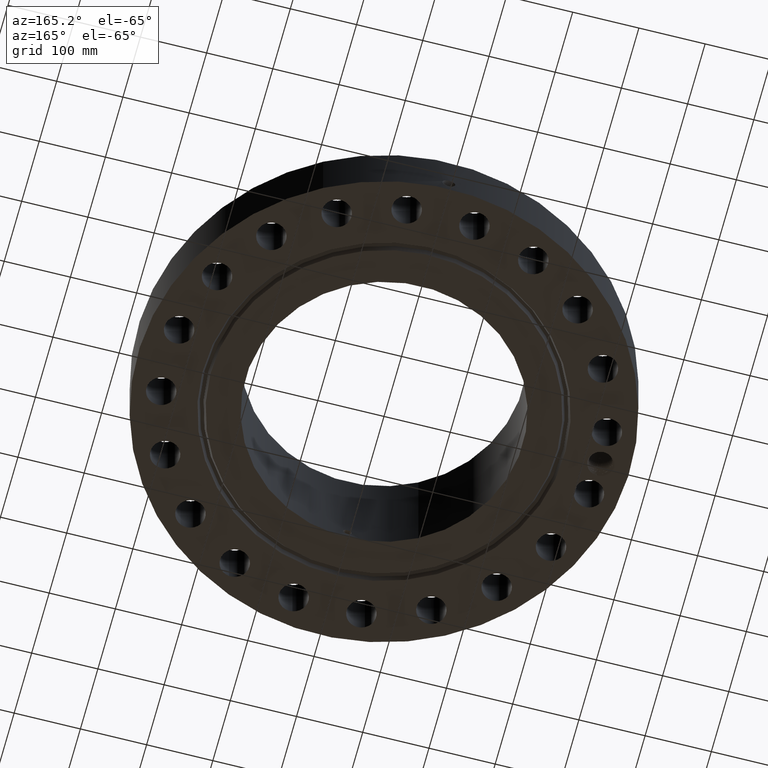
[diagram: clean part render]
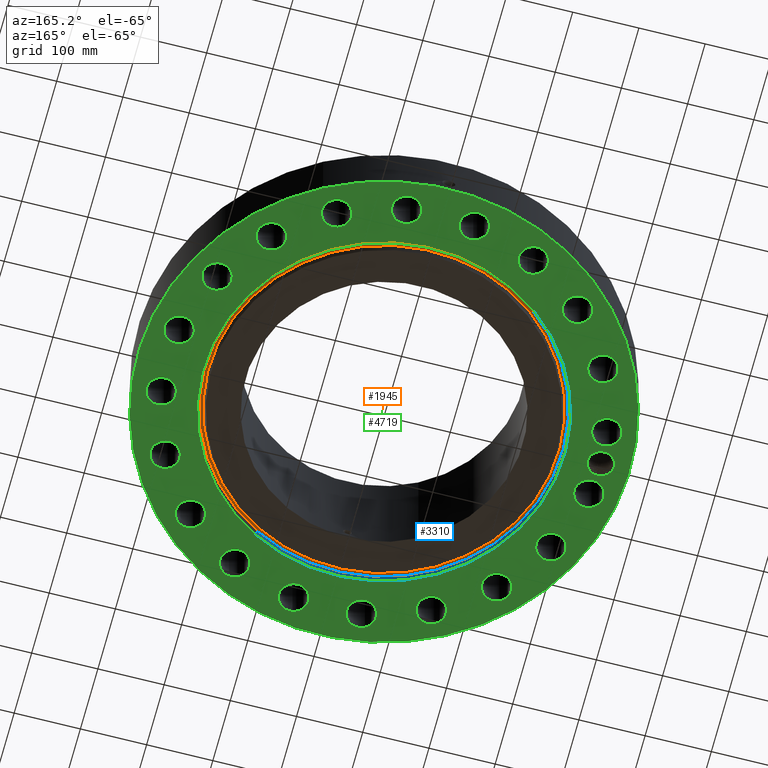
[diagram: same view with three faces highlighted in distinct colors, each labeled with its STEP entity id]
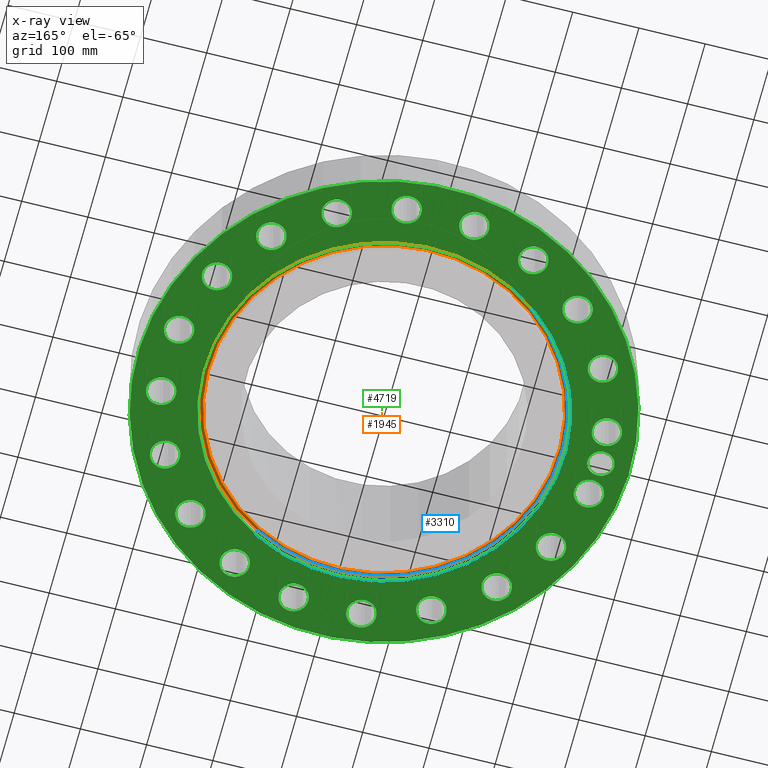
[diagram: x-ray of the same camera — body ghosted, the three highlighted faces saturated]
A machine part, auxiliary view with three faces highlighted in distinct colors.
The next image is the same camera in x-ray (body ghosted, the three faces saturated) — at least one of them is partly hidden behind the body in this view.
Their STEP definitions:

[orange] entity #1945 — the highlighted planar face has unit normal (0, 0, 1).
#1423=AXIS2_PLACEMENT_3D('Circle Axis2P3D',#1421,#1422,$) ;
#1449=AXIS2_PLACEMENT_3D('Circle Axis2P3D',#1447,#1448,$) ;
#1921=AXIS2_PLACEMENT_3D('Plane Axis2P3D',#1918,#1919,#1920) ;
#1925=AXIS2_PLACEMENT_3D('Circle Axis2P3D',#1923,#1924,$) ;
#1934=AXIS2_PLACEMENT_3D('Circle Axis2P3D',#1932,#1933,$) ;
#1421=CARTESIAN_POINT('Axis2P3D Location',(0.,0.,0.312000000001)) ;
#1425=CARTESIAN_POINT('Vertex',(4.99455588084,-9.14247321528,0.312000000001)) ;
#1427=CARTESIAN_POINT('Vertex',(-4.99455588084,9.14247321528,0.312000000001)) ;
#1447=CARTESIAN_POINT('Axis2P3D Location',(0.,0.,0.312000000001)) ;
#1918=CARTESIAN_POINT('Axis2P3D Location',(0.,10.4177927095,0.312000000001)) ;
#1923=CARTESIAN_POINT('Axis2P3D Location',(0.,0.,0.312000000001)) ;
#1927=CARTESIAN_POINT('Vertex',(-5.07338042989,9.2867605845,0.312000000001)) ;
#1929=CARTESIAN_POINT('Vertex',(5.07338042989,-9.2867605845,0.312000000001)) ;
#1932=CARTESIAN_POINT('Axis2P3D Location',(0.,0.,0.312000000001)) ;
#1422=DIRECTION('Axis2P3D Direction',(0.,0.,0.0393700787402)) ;
#1448=DIRECTION('Axis2P3D Direction',(0.,0.,0.0393700787402)) ;
#1919=DIRECTION('Axis2P3D Direction',(0.,0.,0.0393700787402)) ;
#1920=DIRECTION('Axis2P3D XDirection',(0.0393700787402,0.,0.)) ;
#1924=DIRECTION('Axis2P3D Direction',(0.,0.,0.0393700787402)) ;
#1933=DIRECTION('Axis2P3D Direction',(0.,0.,0.0393700787402)) ;
#1938=ORIENTED_EDGE('',*,*,#1931,.F.) ;
#1939=ORIENTED_EDGE('',*,*,#1936,.F.) ;
#1942=ORIENTED_EDGE('',*,*,#1429,.T.) ;
#1943=ORIENTED_EDGE('',*,*,#1451,.T.) ;
#1944=FACE_BOUND('',#1941,.T.) ;
#1945=ADVANCED_FACE('PartBody',(#1940,#1944),#1922,.F.) ;
#1424=CIRCLE('generated circle',#1423,10.4177927095) ;
#1450=CIRCLE('generated circle',#1449,10.4177927095) ;
#1926=CIRCLE('generated circle',#1925,10.5822072905) ;
#1935=CIRCLE('generated circle',#1934,10.5822072905) ;
#1429=EDGE_CURVE('',#1426,#1428,#1424,.T.) ;
#1451=EDGE_CURVE('',#1428,#1426,#1450,.T.) ;
#1931=EDGE_CURVE('',#1928,#1930,#1926,.T.) ;
#1936=EDGE_CURVE('',#1930,#1928,#1935,.T.) ;
#1937=EDGE_LOOP('',(#1938,#1939)) ;
#1941=EDGE_LOOP('',(#1942,#1943)) ;
#1940=FACE_OUTER_BOUND('',#1937,.T.) ;
#1922=PLANE('',#1921) ;
#1426=VERTEX_POINT('',#1425) ;
#1428=VERTEX_POINT('',#1427) ;
#1928=VERTEX_POINT('',#1927) ;
#1930=VERTEX_POINT('',#1929) ;

[blue] entity #3310 — the highlighted conical surface has half-angle 23 deg.
#2635=AXIS2_PLACEMENT_3D('Circle Axis2P3D',#2633,#2634,$) ;
#3271=AXIS2_PLACEMENT_3D('Cone Axis2P3D',#3268,#3269,#3270) ;
#3301=AXIS2_PLACEMENT_3D('Circle Axis2P3D',#3299,#3300,$) ;
#2611=CARTESIAN_POINT('Vertex',(5.08661983595,-9.31099515472,0.293721933856)) ;
#2613=CARTESIAN_POINT('Vertex',(-5.08661983595,9.31099515472,0.293721933856)) ;
#2633=CARTESIAN_POINT('Axis2P3D Location',(0.,0.,0.293721933856)) ;
#3268=CARTESIAN_POINT('Axis2P3D Location',(0.,0.,0.293721933856)) ;
#3277=CARTESIAN_POINT('Vertex',(-5.14639344417,9.42041001065,0.)) ;
#3279=CARTESIAN_POINT('Vertex',(5.14639344417,-9.42041001065,-1.60851209867E-015)) ;
#3282=CARTESIAN_POINT('Line Origine',(5.11650664006,-9.36570258269,0.146860966928)) ;
#3287=CARTESIAN_POINT('Line Origine',(-5.11650664006,9.36570258269,0.146860966928)) ;
#3299=CARTESIAN_POINT('Axis2P3D Location',(0.,0.,0.)) ;
#2634=DIRECTION('Axis2P3D Direction',(0.,0.,0.0393700787402)) ;
#3269=DIRECTION('Axis2P3D Direction',(-0.,-0.,-0.0393700787402)) ;
#3270=DIRECTION('Axis2P3D XDirection',(0.0188750212049,-0.0345504945626,0.)) ;
#3283=DIRECTION('Vector Direction',(0.00737505833565,-0.0134999537303,-0.0362403485611)) ;
#3288=DIRECTION('Vector Direction',(-0.00737505833565,0.0134999537303,-0.0362403485611)) ;
#3300=DIRECTION('Axis2P3D Direction',(0.,0.,-0.0393700787402)) ;
#3284=VECTOR('Line Direction',#3283,0.0393700787402) ;
#3289=VECTOR('Line Direction',#3288,0.0393700787402) ;
#3305=ORIENTED_EDGE('',*,*,#3303,.T.) ;
#3306=ORIENTED_EDGE('',*,*,#3291,.T.) ;
#3307=ORIENTED_EDGE('',*,*,#2637,.T.) ;
#3308=ORIENTED_EDGE('',*,*,#3286,.F.) ;
#3310=ADVANCED_FACE('PartBody',(#3309),#3272,.F.) ;
#2636=CIRCLE('generated circle',#2635,10.6098224362) ;
#3302=CIRCLE('generated circle',#3301,10.7345) ;
#3272=CONICAL_SURFACE('Cone',#3271,10.6098224362,0.401425727959) ;
#2637=EDGE_CURVE('',#2614,#2612,#2636,.T.) ;
#3286=EDGE_CURVE('',#3280,#2612,#3285,.F.) ;
#3291=EDGE_CURVE('',#3278,#2614,#3290,.F.) ;
#3303=EDGE_CURVE('',#3280,#3278,#3302,.T.) ;
#3304=EDGE_LOOP('',(#3305,#3306,#3307,#3308)) ;
#3309=FACE_OUTER_BOUND('',#3304,.T.) ;
#3285=LINE('Line',#3282,#3284) ;
#3290=LINE('Line',#3287,#3289) ;
#2612=VERTEX_POINT('',#2611) ;
#2614=VERTEX_POINT('',#2613) ;
#3278=VERTEX_POINT('',#3277) ;
#3280=VERTEX_POINT('',#3279) ;

[green] entity #4719 — the highlighted planar face has unit normal (0, 0, -1).
#598=AXIS2_PLACEMENT_3D('Plane Axis2P3D',#595,#596,#597) ;
#3275=AXIS2_PLACEMENT_3D('Circle Axis2P3D',#3273,#3274,$) ;
#3301=AXIS2_PLACEMENT_3D('Circle Axis2P3D',#3299,#3300,$) ;
#4270=AXIS2_PLACEMENT_3D('Circle Axis2P3D',#4268,#4269,$) ;
#4279=AXIS2_PLACEMENT_3D('Circle Axis2P3D',#4277,#4278,$) ;
#4338=AXIS2_PLACEMENT_3D('Circle Axis2P3D',#4336,#4337,$) ;
#4345=AXIS2_PLACEMENT_3D('Circle Axis2P3D',#4343,#4344,$) ;
#4357=AXIS2_PLACEMENT_3D('Circle Axis2P3D',#4355,#4356,$) ;
#4366=AXIS2_PLACEMENT_3D('Circle Axis2P3D',#4364,#4365,$) ;
#4375=AXIS2_PLACEMENT_3D('Circle Axis2P3D',#4373,#4374,$) ;
#4384=AXIS2_PLACEMENT_3D('Circle Axis2P3D',#4382,#4383,$) ;
#4393=AXIS2_PLACEMENT_3D('Circle Axis2P3D',#4391,#4392,$) ;
#4402=AXIS2_PLACEMENT_3D('Circle Axis2P3D',#4400,#4401,$) ;
#4411=AXIS2_PLACEMENT_3D('Circle Axis2P3D',#4409,#4410,$) ;
#4420=AXIS2_PLACEMENT_3D('Circle Axis2P3D',#4418,#4419,$) ;
#4429=AXIS2_PLACEMENT_3D('Circle Axis2P3D',#4427,#4428,$) ;
#4438=AXIS2_PLACEMENT_3D('Circle Axis2P3D',#4436,#4437,$) ;
#4447=AXIS2_PLACEMENT_3D('Circle Axis2P3D',#4445,#4446,$) ;
#4456=AXIS2_PLACEMENT_3D('Circle Axis2P3D',#4454,#4455,$) ;
#4465=AXIS2_PLACEMENT_3D('Circle Axis2P3D',#4463,#4464,$) ;
#4474=AXIS2_PLACEMENT_3D('Circle Axis2P3D',#4472,#4473,$) ;
#4483=AXIS2_PLACEMENT_3D('Circle Axis2P3D',#4481,#4482,$) ;
#4492=AXIS2_PLACEMENT_3D('Circle Axis2P3D',#4490,#4491,$) ;
#4501=AXIS2_PLACEMENT_3D('Circle Axis2P3D',#4499,#4500,$) ;
#4510=AXIS2_PLACEMENT_3D('Circle Axis2P3D',#4508,#4509,$) ;
#4519=AXIS2_PLACEMENT_3D('Circle Axis2P3D',#4517,#4518,$) ;
#4528=AXIS2_PLACEMENT_3D('Circle Axis2P3D',#4526,#4527,$) ;
#4537=AXIS2_PLACEMENT_3D('Circle Axis2P3D',#4535,#4536,$) ;
#4546=AXIS2_PLACEMENT_3D('Circle Axis2P3D',#4544,#4545,$) ;
#4555=AXIS2_PLACEMENT_3D('Circle Axis2P3D',#4553,#4554,$) ;
#4564=AXIS2_PLACEMENT_3D('Circle Axis2P3D',#4562,#4563,$) ;
#4573=AXIS2_PLACEMENT_3D('Circle Axis2P3D',#4571,#4572,$) ;
#4582=AXIS2_PLACEMENT_3D('Circle Axis2P3D',#4580,#4581,$) ;
#4591=AXIS2_PLACEMENT_3D('Circle Axis2P3D',#4589,#4590,$) ;
#4600=AXIS2_PLACEMENT_3D('Circle Axis2P3D',#4598,#4599,$) ;
#4609=AXIS2_PLACEMENT_3D('Circle Axis2P3D',#4607,#4608,$) ;
#4618=AXIS2_PLACEMENT_3D('Circle Axis2P3D',#4616,#4617,$) ;
#4627=AXIS2_PLACEMENT_3D('Circle Axis2P3D',#4625,#4626,$) ;
#4636=AXIS2_PLACEMENT_3D('Circle Axis2P3D',#4634,#4635,$) ;
#4645=AXIS2_PLACEMENT_3D('Circle Axis2P3D',#4643,#4644,$) ;
#4654=AXIS2_PLACEMENT_3D('Circle Axis2P3D',#4652,#4653,$) ;
#4663=AXIS2_PLACEMENT_3D('Circle Axis2P3D',#4661,#4662,$) ;
#4672=AXIS2_PLACEMENT_3D('Circle Axis2P3D',#4670,#4671,$) ;
#4681=AXIS2_PLACEMENT_3D('Circle Axis2P3D',#4679,#4680,$) ;
#4690=AXIS2_PLACEMENT_3D('Circle Axis2P3D',#4688,#4689,$) ;
#4699=AXIS2_PLACEMENT_3D('Circle Axis2P3D',#4697,#4698,$) ;
#4708=AXIS2_PLACEMENT_3D('Circle Axis2P3D',#4706,#4707,$) ;
#595=CARTESIAN_POINT('Axis2P3D Location',(0.,8.25000000003,0.)) ;
#3273=CARTESIAN_POINT('Axis2P3D Location',(0.,0.,0.)) ;
#3277=CARTESIAN_POINT('Vertex',(-5.14639344417,9.42041001065,0.)) ;
#3279=CARTESIAN_POINT('Vertex',(5.14639344417,-9.42041001065,-1.60851209867E-015)) ;
#3299=CARTESIAN_POINT('Axis2P3D Location',(0.,0.,0.)) ;
#4268=CARTESIAN_POINT('Axis2P3D Location',(0.,0.,0.)) ;
#4272=CARTESIAN_POINT('Vertex',(-7.01159850211,-12.8346449677,2.23792987641E-015)) ;
#4274=CARTESIAN_POINT('Vertex',(7.01159850211,12.8346449677,2.23792987641E-015)) ;
#4277=CARTESIAN_POINT('Axis2P3D Location',(0.,0.,0.)) ;
#4287=CARTESIAN_POINT('Control Point',(-13.6866242781,1.35474074871E-005,0.)) ;
#4288=CARTESIAN_POINT('Control Point',(-13.6836180666,0.0700570292197,0.)) ;
#4289=CARTESIAN_POINT('Control Point',(-13.6730485164,0.139624588331,0.)) ;
#4290=CARTESIAN_POINT('Control Point',(-13.654989964,0.207595683142,0.)) ;
#4291=CARTESIAN_POINT('Control Point',(-13.6045073422,0.338230965276,0.)) ;
#4292=CARTESIAN_POINT('Control Point',(-13.5274489773,0.454294495106,0.)) ;
#4293=CARTESIAN_POINT('Control Point',(-13.4827857727,0.507743532633,0.)) ;
#4294=CARTESIAN_POINT('Control Point',(-13.3827049571,0.60375855583,0.)) ;
#4295=CARTESIAN_POINT('Control Point',(-13.2647084594,0.675356409614,0.)) ;
#4296=CARTESIAN_POINT('Control Point',(-13.2021023627,0.704405495953,0.)) ;
#4297=CARTESIAN_POINT('Control Point',(-13.1298904175,0.728589801911,0.)) ;
#4298=CARTESIAN_POINT('Control Point',(-13.0558913411,0.743623662759,0.)) ;
#4299=CARTESIAN_POINT('Control Point',(-13.0486445036,0.745005102167,0.)) ;
#4300=CARTESIAN_POINT('Control Point',(-13.0413833957,0.746298625475,0.)) ;
#4301=CARTESIAN_POINT('Control Point',(-13.0341094268,0.747504015253,0.)) ;
#4302=CARTESIAN_POINT('Vertex',(-13.6866242781,1.35474074859E-005,-4.37095678986E-018)) ;
#4304=CARTESIAN_POINT('Vertex',(-13.0341094268,0.747504015253,0.)) ;
#4308=CARTESIAN_POINT('Control Point',(-13.6872434057,-0.0204182056818,0.)) ;
#4309=CARTESIAN_POINT('Control Point',(-13.6871710386,-0.0163295524325,0.)) ;
#4310=CARTESIAN_POINT('Control Point',(-13.6870729349,-0.0122418608573,0.)) ;
#4311=CARTESIAN_POINT('Control Point',(-13.6869490924,-0.00815506088614,0.)) ;
#4312=CARTESIAN_POINT('Control Point',(-13.6867995386,-0.00406994809314,0.)) ;
#4313=CARTESIAN_POINT('Control Point',(-13.6866242781,1.3547407486E-005,0.)) ;
#4314=CARTESIAN_POINT('Vertex',(-13.6872434057,-0.0204182056816,-2.18547839493E-018)) ;
#4318=CARTESIAN_POINT('Control Point',(-13.6872434057,-0.0204182056816,0.)) ;
#4319=CARTESIAN_POINT('Control Point',(-13.6824808799,-0.0903859875694,0.)) ;
#4320=CARTESIAN_POINT('Control Point',(-13.6701730356,-0.159687238609,0.)) ;
#4321=CARTESIAN_POINT('Control Point',(-13.6504126473,-0.227226833744,0.)) ;
#4322=CARTESIAN_POINT('Control Point',(-13.5966708921,-0.356620931834,0.)) ;
#4323=CARTESIAN_POINT('Control Point',(-13.5166775766,-0.470868798601,0.)) ;
#4324=CARTESIAN_POINT('Control Point',(-13.4706673304,-0.523252883191,0.)) ;
#4325=CARTESIAN_POINT('Control Point',(-13.3852463008,-0.601246634552,0.)) ;
#4326=CARTESIAN_POINT('Control Point',(-13.2877612329,-0.661980948594,0.)) ;
#4327=CARTESIAN_POINT('Control Point',(-13.2471188375,-0.683317940292,0.)) ;
#4328=CARTESIAN_POINT('Control Point',(-13.1736973363,-0.715194961295,0.)) ;
#4329=CARTESIAN_POINT('Control Point',(-13.0970930796,-0.737278431439,0.)) ;
#4330=CARTESIAN_POINT('Control Point',(-13.063861906,-0.744891584599,0.)) ;
#4331=CARTESIAN_POINT('Control Point',(-13.0303265213,-0.750639327949,0.)) ;
#4332=CARTESIAN_POINT('Control Point',(-12.9966251311,-0.754510033071,0.)) ;
#4333=CARTESIAN_POINT('Vertex',(-12.9966251311,-0.754510033071,0.)) ;
#4336=CARTESIAN_POINT('Axis2P3D Location',(-12.8750000001,-1.1189649382E-015,0.)) ;
#4340=CARTESIAN_POINT('Vertex',(-12.2043075271,-0.36640096788,0.)) ;
#4343=CARTESIAN_POINT('Axis2P3D Location',(-12.8750000001,-1.1189649382E-015,0.)) ;
#4355=CARTESIAN_POINT('Axis2P3D Location',(12.7164873852,-2.0140937374,0.)) ;
#4359=CARTESIAN_POINT('Vertex',(13.4843721269,-2.43359108368,0.)) ;
#4361=CARTESIAN_POINT('Vertex',(11.9486026436,-1.59459639112,0.)) ;
#4364=CARTESIAN_POINT('Axis2P3D Location',(12.7164873852,-2.0140937374,0.)) ;
#4373=CARTESIAN_POINT('Axis2P3D Location',(11.471708999,-5.84512768417,0.)) ;
#4377=CARTESIAN_POINT('Vertex',(10.8710390208,-5.20887256453,0.)) ;
#4379=CARTESIAN_POINT('Vertex',(12.0723789772,-6.48138280381,0.)) ;
#4382=CARTESIAN_POINT('Axis2P3D Location',(11.471708999,-5.84512768417,0.)) ;
#4391=CARTESIAN_POINT('Axis2P3D Location',(9.10399980781,-9.10399980781,0.)) ;
#4395=CARTESIAN_POINT('Vertex',(8.72934235561,-8.31326799897,0.)) ;
#4397=CARTESIAN_POINT('Vertex',(9.47865726002,-9.89473161666,-3.35689481461E-015)) ;
#4400=CARTESIAN_POINT('Axis2P3D Location',(9.10399980781,-9.10399980781,0.)) ;
#4409=CARTESIAN_POINT('Axis2P3D Location',(5.84512768417,-11.471708999,0.)) ;
#4413=CARTESIAN_POINT('Vertex',(5.7331568398,-10.6039028397,0.)) ;
#4415=CARTESIAN_POINT('Vertex',(5.95709852854,-12.3395151582,0.)) ;
#4418=CARTESIAN_POINT('Axis2P3D Location',(5.84512768417,-11.471708999,0.)) ;
#4427=CARTESIAN_POINT('Axis2P3D Location',(2.0140937374,-12.7164873852,0.)) ;
#4431=CARTESIAN_POINT('Vertex',(2.17576998726,-11.8565537888,0.)) ;
#4433=CARTESIAN_POINT('Vertex',(1.85241748755,-13.5764209816,0.)) ;
#4436=CARTESIAN_POINT('Axis2P3D Location',(2.0140937374,-12.7164873852,0.)) ;
#4445=CARTESIAN_POINT('Axis2P3D Location',(-2.0140937374,-12.7164873852,0.)) ;
#4449=CARTESIAN_POINT('Vertex',(-1.59459639112,-11.9486026436,0.)) ;
#4451=CARTESIAN_POINT('Vertex',(-2.43359108368,-13.4843721269,0.)) ;
#4454=CARTESIAN_POINT('Axis2P3D Location',(-2.0140937374,-12.7164873852,0.)) ;
#4463=CARTESIAN_POINT('Axis2P3D Location',(-5.84512768417,-11.471708999,0.)) ;
#4467=CARTESIAN_POINT('Vertex',(-5.20887256453,-10.8710390208,0.)) ;
#4469=CARTESIAN_POINT('Vertex',(-6.48138280381,-12.0723789772,0.)) ;
#4472=CARTESIAN_POINT('Axis2P3D Location',(-5.84512768417,-11.471708999,0.)) ;
#4481=CARTESIAN_POINT('Axis2P3D Location',(-9.10399980781,-9.10399980781,0.)) ;
#4485=CARTESIAN_POINT('Vertex',(-8.31326799897,-8.72934235561,0.)) ;
#4487=CARTESIAN_POINT('Vertex',(-9.89473161666,-9.47865726002,0.)) ;
#4490=CARTESIAN_POINT('Axis2P3D Location',(-9.10399980781,-9.10399980781,0.)) ;
#4499=CARTESIAN_POINT('Axis2P3D Location',(-11.471708999,-5.84512768417,0.)) ;
#4503=CARTESIAN_POINT('Vertex',(-10.6039028397,-5.7331568398,0.)) ;
#4505=CARTESIAN_POINT('Vertex',(-12.3395151582,-5.95709852854,0.)) ;
#4508=CARTESIAN_POINT('Axis2P3D Location',(-11.471708999,-5.84512768417,0.)) ;
#4517=CARTESIAN_POINT('Axis2P3D Location',(-12.7164873852,-2.0140937374,0.)) ;
#4521=CARTESIAN_POINT('Vertex',(-11.8565537888,-2.17576998726,0.)) ;
#4523=CARTESIAN_POINT('Vertex',(-13.5764209816,-1.85241748755,0.)) ;
#4526=CARTESIAN_POINT('Axis2P3D Location',(-12.7164873852,-2.0140937374,0.)) ;
#4535=CARTESIAN_POINT('Axis2P3D Location',(-12.7164873852,2.0140937374,0.)) ;
#4539=CARTESIAN_POINT('Vertex',(-11.9486026436,1.59459639112,0.)) ;
#4541=CARTESIAN_POINT('Vertex',(-13.4843721269,2.43359108368,0.)) ;
#4544=CARTESIAN_POINT('Axis2P3D Location',(-12.7164873852,2.0140937374,0.)) ;
#4553=CARTESIAN_POINT('Axis2P3D Location',(-11.471708999,5.84512768417,0.)) ;
#4557=CARTESIAN_POINT('Vertex',(-10.8710390208,5.20887256453,0.)) ;
#4559=CARTESIAN_POINT('Vertex',(-12.0723789772,6.48138280381,0.)) ;
#4562=CARTESIAN_POINT('Axis2P3D Location',(-11.471708999,5.84512768417,0.)) ;
#4571=CARTESIAN_POINT('Axis2P3D Location',(-9.10399980781,9.10399980781,0.)) ;
#4575=CARTESIAN_POINT('Vertex',(-8.72934235561,8.31326799897,0.)) ;
#4577=CARTESIAN_POINT('Vertex',(-9.47865726002,9.89473161666,-3.35689481461E-015)) ;
#4580=CARTESIAN_POINT('Axis2P3D Location',(-9.10399980781,9.10399980781,0.)) ;
#4589=CARTESIAN_POINT('Axis2P3D Location',(-5.84512768417,11.471708999,0.)) ;
#4593=CARTESIAN_POINT('Vertex',(-5.7331568398,10.6039028397,0.)) ;
#4595=CARTESIAN_POINT('Vertex',(-5.95709852854,12.3395151582,0.)) ;
#4598=CARTESIAN_POINT('Axis2P3D Location',(-5.84512768417,11.471708999,0.)) ;
#4607=CARTESIAN_POINT('Axis2P3D Location',(-2.0140937374,12.7164873852,0.)) ;
#4611=CARTESIAN_POINT('Vertex',(-2.17576998726,11.8565537888,0.)) ;
#4613=CARTESIAN_POINT('Vertex',(-1.85241748755,13.5764209816,-3.35689481461E-015)) ;
#4616=CARTESIAN_POINT('Axis2P3D Location',(-2.0140937374,12.7164873852,0.)) ;
#4625=CARTESIAN_POINT('Axis2P3D Location',(2.0140937374,12.7164873852,0.)) ;
#4629=CARTESIAN_POINT('Vertex',(1.59459639112,11.9486026436,0.)) ;
#4631=CARTESIAN_POINT('Vertex',(2.43359108368,13.4843721269,0.)) ;
#4634=CARTESIAN_POINT('Axis2P3D Location',(2.0140937374,12.7164873852,0.)) ;
#4643=CARTESIAN_POINT('Axis2P3D Location',(5.84512768417,11.471708999,0.)) ;
#4647=CARTESIAN_POINT('Vertex',(5.20887256453,10.8710390208,0.)) ;
#4649=CARTESIAN_POINT('Vertex',(6.48138280381,12.0723789772,-3.35689481461E-015)) ;
#4652=CARTESIAN_POINT('Axis2P3D Location',(5.84512768417,11.471708999,0.)) ;
#4661=CARTESIAN_POINT('Axis2P3D Location',(9.10399980781,9.10399980781,0.)) ;
#4665=CARTESIAN_POINT('Vertex',(8.31326799897,8.72934235561,0.)) ;
#4667=CARTESIAN_POINT('Vertex',(9.89473161666,9.47865726002,0.)) ;
#4670=CARTESIAN_POINT('Axis2P3D Location',(9.10399980781,9.10399980781,0.)) ;
#4679=CARTESIAN_POINT('Axis2P3D Location',(11.471708999,5.84512768417,0.)) ;
#4683=CARTESIAN_POINT('Vertex',(10.6039028397,5.7331568398,0.)) ;
#4685=CARTESIAN_POINT('Vertex',(12.3395151582,5.95709852854,0.)) ;
#4688=CARTESIAN_POINT('Axis2P3D Location',(11.471708999,5.84512768417,0.)) ;
#4697=CARTESIAN_POINT('Axis2P3D Location',(12.7164873852,2.0140937374,0.)) ;
#4701=CARTESIAN_POINT('Vertex',(11.8565537888,2.17576998726,0.)) ;
#4703=CARTESIAN_POINT('Vertex',(13.5764209816,1.85241748755,-3.35689481461E-015)) ;
#4706=CARTESIAN_POINT('Axis2P3D Location',(12.7164873852,2.0140937374,0.)) ;
#596=DIRECTION('Axis2P3D Direction',(0.,0.,-0.0393700787402)) ;
#597=DIRECTION('Axis2P3D XDirection',(0.0393700787402,0.,0.)) ;
#3274=DIRECTION('Axis2P3D Direction',(0.,0.,-0.0393700787402)) ;
#3300=DIRECTION('Axis2P3D Direction',(0.,0.,-0.0393700787402)) ;
#4269=DIRECTION('Axis2P3D Direction',(0.,0.,-0.0393700787402)) ;
#4278=DIRECTION('Axis2P3D Direction',(0.,0.,-0.0393700787402)) ;
#4337=DIRECTION('Axis2P3D Direction',(0.,0.,-0.0393700787402)) ;
#4344=DIRECTION('Axis2P3D Direction',(0.,0.,-0.0393700787402)) ;
#4356=DIRECTION('Axis2P3D Direction',(0.,0.,-0.0393700787402)) ;
#4365=DIRECTION('Axis2P3D Direction',(0.,0.,-0.0393700787402)) ;
#4374=DIRECTION('Axis2P3D Direction',(0.,0.,-0.0393700787402)) ;
#4383=DIRECTION('Axis2P3D Direction',(0.,0.,-0.0393700787402)) ;
#4392=DIRECTION('Axis2P3D Direction',(0.,0.,-0.0393700787402)) ;
#4401=DIRECTION('Axis2P3D Direction',(0.,0.,-0.0393700787402)) ;
#4410=DIRECTION('Axis2P3D Direction',(0.,0.,-0.0393700787402)) ;
#4419=DIRECTION('Axis2P3D Direction',(0.,0.,-0.0393700787402)) ;
#4428=DIRECTION('Axis2P3D Direction',(0.,0.,-0.0393700787402)) ;
#4437=DIRECTION('Axis2P3D Direction',(0.,0.,-0.0393700787402)) ;
#4446=DIRECTION('Axis2P3D Direction',(0.,0.,-0.0393700787402)) ;
#4455=DIRECTION('Axis2P3D Direction',(0.,0.,-0.0393700787402)) ;
#4464=DIRECTION('Axis2P3D Direction',(0.,0.,-0.0393700787402)) ;
#4473=DIRECTION('Axis2P3D Direction',(0.,0.,-0.0393700787402)) ;
#4482=DIRECTION('Axis2P3D Direction',(0.,0.,-0.0393700787402)) ;
#4491=DIRECTION('Axis2P3D Direction',(0.,0.,-0.0393700787402)) ;
#4500=DIRECTION('Axis2P3D Direction',(0.,0.,-0.0393700787402)) ;
#4509=DIRECTION('Axis2P3D Direction',(0.,0.,-0.0393700787402)) ;
#4518=DIRECTION('Axis2P3D Direction',(0.,0.,-0.0393700787402)) ;
#4527=DIRECTION('Axis2P3D Direction',(0.,0.,-0.0393700787402)) ;
#4536=DIRECTION('Axis2P3D Direction',(0.,0.,-0.0393700787402)) ;
#4545=DIRECTION('Axis2P3D Direction',(0.,0.,-0.0393700787402)) ;
#4554=DIRECTION('Axis2P3D Direction',(0.,0.,-0.0393700787402)) ;
#4563=DIRECTION('Axis2P3D Direction',(0.,0.,-0.0393700787402)) ;
#4572=DIRECTION('Axis2P3D Direction',(0.,0.,-0.0393700787402)) ;
#4581=DIRECTION('Axis2P3D Direction',(0.,0.,-0.0393700787402)) ;
#4590=DIRECTION('Axis2P3D Direction',(0.,0.,-0.0393700787402)) ;
#4599=DIRECTION('Axis2P3D Direction',(0.,0.,-0.0393700787402)) ;
#4608=DIRECTION('Axis2P3D Direction',(0.,0.,-0.0393700787402)) ;
#4617=DIRECTION('Axis2P3D Direction',(0.,0.,-0.0393700787402)) ;
#4626=DIRECTION('Axis2P3D Direction',(0.,0.,-0.0393700787402)) ;
#4635=DIRECTION('Axis2P3D Direction',(0.,0.,-0.0393700787402)) ;
#4644=DIRECTION('Axis2P3D Direction',(0.,0.,-0.0393700787402)) ;
#4653=DIRECTION('Axis2P3D Direction',(0.,0.,-0.0393700787402)) ;
#4662=DIRECTION('Axis2P3D Direction',(0.,0.,-0.0393700787402)) ;
#4671=DIRECTION('Axis2P3D Direction',(0.,0.,-0.0393700787402)) ;
#4680=DIRECTION('Axis2P3D Direction',(0.,0.,-0.0393700787402)) ;
#4689=DIRECTION('Axis2P3D Direction',(0.,0.,-0.0393700787402)) ;
#4698=DIRECTION('Axis2P3D Direction',(0.,0.,-0.0393700787402)) ;
#4707=DIRECTION('Axis2P3D Direction',(0.,0.,-0.0393700787402)) ;
#4283=ORIENTED_EDGE('',*,*,#4276,.T.) ;
#4284=ORIENTED_EDGE('',*,*,#4281,.T.) ;
#4349=ORIENTED_EDGE('',*,*,#4306,.F.) ;
#4350=ORIENTED_EDGE('',*,*,#4316,.F.) ;
#4351=ORIENTED_EDGE('',*,*,#4335,.T.) ;
#4352=ORIENTED_EDGE('',*,*,#4342,.F.) ;
#4353=ORIENTED_EDGE('',*,*,#4347,.F.) ;
#4370=ORIENTED_EDGE('',*,*,#4363,.F.) ;
#4371=ORIENTED_EDGE('',*,*,#4368,.F.) ;
#4388=ORIENTED_EDGE('',*,*,#4381,.F.) ;
#4389=ORIENTED_EDGE('',*,*,#4386,.F.) ;
#4406=ORIENTED_EDGE('',*,*,#4399,.F.) ;
#4407=ORIENTED_EDGE('',*,*,#4404,.F.) ;
#4424=ORIENTED_EDGE('',*,*,#4417,.F.) ;
#4425=ORIENTED_EDGE('',*,*,#4422,.F.) ;
#4442=ORIENTED_EDGE('',*,*,#4435,.F.) ;
#4443=ORIENTED_EDGE('',*,*,#4440,.F.) ;
#4460=ORIENTED_EDGE('',*,*,#4453,.F.) ;
#4461=ORIENTED_EDGE('',*,*,#4458,.F.) ;
#4478=ORIENTED_EDGE('',*,*,#4471,.F.) ;
#4479=ORIENTED_EDGE('',*,*,#4476,.F.) ;
#4496=ORIENTED_EDGE('',*,*,#4489,.F.) ;
#4497=ORIENTED_EDGE('',*,*,#4494,.F.) ;
#4514=ORIENTED_EDGE('',*,*,#4507,.F.) ;
#4515=ORIENTED_EDGE('',*,*,#4512,.F.) ;
#4532=ORIENTED_EDGE('',*,*,#4525,.F.) ;
#4533=ORIENTED_EDGE('',*,*,#4530,.F.) ;
#4550=ORIENTED_EDGE('',*,*,#4543,.F.) ;
#4551=ORIENTED_EDGE('',*,*,#4548,.F.) ;
#4568=ORIENTED_EDGE('',*,*,#4561,.F.) ;
#4569=ORIENTED_EDGE('',*,*,#4566,.F.) ;
#4586=ORIENTED_EDGE('',*,*,#4579,.F.) ;
#4587=ORIENTED_EDGE('',*,*,#4584,.F.) ;
#4604=ORIENTED_EDGE('',*,*,#4597,.F.) ;
#4605=ORIENTED_EDGE('',*,*,#4602,.F.) ;
#4622=ORIENTED_EDGE('',*,*,#4615,.F.) ;
#4623=ORIENTED_EDGE('',*,*,#4620,.F.) ;
#4640=ORIENTED_EDGE('',*,*,#4633,.F.) ;
#4641=ORIENTED_EDGE('',*,*,#4638,.F.) ;
#4658=ORIENTED_EDGE('',*,*,#4651,.F.) ;
#4659=ORIENTED_EDGE('',*,*,#4656,.F.) ;
#4676=ORIENTED_EDGE('',*,*,#4669,.F.) ;
#4677=ORIENTED_EDGE('',*,*,#4674,.F.) ;
#4694=ORIENTED_EDGE('',*,*,#4687,.F.) ;
#4695=ORIENTED_EDGE('',*,*,#4692,.F.) ;
#4712=ORIENTED_EDGE('',*,*,#4705,.F.) ;
#4713=ORIENTED_EDGE('',*,*,#4710,.F.) ;
#4716=ORIENTED_EDGE('',*,*,#3303,.F.) ;
#4717=ORIENTED_EDGE('',*,*,#3281,.F.) ;
#4354=FACE_BOUND('',#4348,.T.) ;
#4372=FACE_BOUND('',#4369,.T.) ;
#4390=FACE_BOUND('',#4387,.T.) ;
#4408=FACE_BOUND('',#4405,.T.) ;
#4426=FACE_BOUND('',#4423,.T.) ;
#4444=FACE_BOUND('',#4441,.T.) ;
#4462=FACE_BOUND('',#4459,.T.) ;
#4480=FACE_BOUND('',#4477,.T.) ;
#4498=FACE_BOUND('',#4495,.T.) ;
#4516=FACE_BOUND('',#4513,.T.) ;
#4534=FACE_BOUND('',#4531,.T.) ;
#4552=FACE_BOUND('',#4549,.T.) ;
#4570=FACE_BOUND('',#4567,.T.) ;
#4588=FACE_BOUND('',#4585,.T.) ;
#4606=FACE_BOUND('',#4603,.T.) ;
#4624=FACE_BOUND('',#4621,.T.) ;
#4642=FACE_BOUND('',#4639,.T.) ;
#4660=FACE_BOUND('',#4657,.T.) ;
#4678=FACE_BOUND('',#4675,.T.) ;
#4696=FACE_BOUND('',#4693,.T.) ;
#4714=FACE_BOUND('',#4711,.T.) ;
#4718=FACE_BOUND('',#4715,.T.) ;
#4719=ADVANCED_FACE('PartBody',(#4285,#4354,#4372,#4390,#4408,#4426,#4444,#4462,#4480,#4498,#4516,#4534,#4552,#4570,#4588,#4606,#4624,#4642,#4660,#4678,#4696,#4714,#4718),#599,.T.) ;
#4286=B_SPLINE_CURVE_WITH_KNOTS('',5,(#4287,#4288,#4289,#4290,#4291,#4292,#4293,#4294,#4295,#4296,#4297,#4298,#4299,#4300,#4301),.UNSPECIFIED.,.F.,.U.,(6,3,3,3,6),(0.,12.1975387411,24.4050867911,36.6184649991,37.9412104498),.UNSPECIFIED.) ;
#4307=B_SPLINE_CURVE_WITH_KNOTS('',5,(#4308,#4309,#4310,#4311,#4312,#4313),.UNSPECIFIED.,.F.,.U.,(6,6),(0.,0.711109631891),.UNSPECIFIED.) ;
#4317=B_SPLINE_CURVE_WITH_KNOTS('',5,(#4318,#4319,#4320,#4321,#4322,#4323,#4324,#4325,#4326,#4327,#4328,#4329,#4330,#4331,#4332),.UNSPECIFIED.,.F.,.U.,(6,3,3,3,6),(0.,12.1952338714,24.3885855299,32.5133933387,38.5908865336),.UNSPECIFIED.) ;
#3276=CIRCLE('generated circle',#3275,10.7345) ;
#3302=CIRCLE('generated circle',#3301,10.7345) ;
#4271=CIRCLE('generated circle',#4270,14.6250000001) ;
#4280=CIRCLE('generated circle',#4279,14.6250000001) ;
#4339=CIRCLE('generated circle',#4338,0.764250000003) ;
#4346=CIRCLE('generated circle',#4345,0.764250000003) ;
#4358=CIRCLE('generated circle',#4357,0.875000000004) ;
#4367=CIRCLE('generated circle',#4366,0.875000000004) ;
#4376=CIRCLE('generated circle',#4375,0.875000000004) ;
#4385=CIRCLE('generated circle',#4384,0.875000000004) ;
#4394=CIRCLE('generated circle',#4393,0.875000000004) ;
#4403=CIRCLE('generated circle',#4402,0.875000000004) ;
#4412=CIRCLE('generated circle',#4411,0.875000000004) ;
#4421=CIRCLE('generated circle',#4420,0.875000000004) ;
#4430=CIRCLE('generated circle',#4429,0.875000000004) ;
#4439=CIRCLE('generated circle',#4438,0.875000000004) ;
#4448=CIRCLE('generated circle',#4447,0.875000000004) ;
#4457=CIRCLE('generated circle',#4456,0.875000000004) ;
#4466=CIRCLE('generated circle',#4465,0.875000000004) ;
#4475=CIRCLE('generated circle',#4474,0.875000000004) ;
#4484=CIRCLE('generated circle',#4483,0.875000000003) ;
#4493=CIRCLE('generated circle',#4492,0.875000000003) ;
#4502=CIRCLE('generated circle',#4501,0.875000000004) ;
#4511=CIRCLE('generated circle',#4510,0.875000000004) ;
#4520=CIRCLE('generated circle',#4519,0.875000000004) ;
#4529=CIRCLE('generated circle',#4528,0.875000000004) ;
#4538=CIRCLE('generated circle',#4537,0.875000000004) ;
#4547=CIRCLE('generated circle',#4546,0.875000000004) ;
#4556=CIRCLE('generated circle',#4555,0.875000000004) ;
#4565=CIRCLE('generated circle',#4564,0.875000000004) ;
#4574=CIRCLE('generated circle',#4573,0.875000000004) ;
#4583=CIRCLE('generated circle',#4582,0.875000000004) ;
#4592=CIRCLE('generated circle',#4591,0.875000000003) ;
#4601=CIRCLE('generated circle',#4600,0.875000000003) ;
#4610=CIRCLE('generated circle',#4609,0.875000000004) ;
#4619=CIRCLE('generated circle',#4618,0.875000000004) ;
#4628=CIRCLE('generated circle',#4627,0.875000000004) ;
#4637=CIRCLE('generated circle',#4636,0.875000000004) ;
#4646=CIRCLE('generated circle',#4645,0.875000000004) ;
#4655=CIRCLE('generated circle',#4654,0.875000000004) ;
#4664=CIRCLE('generated circle',#4663,0.875000000004) ;
#4673=CIRCLE('generated circle',#4672,0.875000000004) ;
#4682=CIRCLE('generated circle',#4681,0.875000000003) ;
#4691=CIRCLE('generated circle',#4690,0.875000000003) ;
#4700=CIRCLE('generated circle',#4699,0.875000000004) ;
#4709=CIRCLE('generated circle',#4708,0.875000000004) ;
#3281=EDGE_CURVE('',#3278,#3280,#3276,.T.) ;
#3303=EDGE_CURVE('',#3280,#3278,#3302,.T.) ;
#4276=EDGE_CURVE('',#4273,#4275,#4271,.T.) ;
#4281=EDGE_CURVE('',#4275,#4273,#4280,.T.) ;
#4306=EDGE_CURVE('',#4303,#4305,#4286,.T.) ;
#4316=EDGE_CURVE('',#4315,#4303,#4307,.T.) ;
#4335=EDGE_CURVE('',#4315,#4334,#4317,.T.) ;
#4342=EDGE_CURVE('',#4341,#4334,#4339,.T.) ;
#4347=EDGE_CURVE('',#4305,#4341,#4346,.T.) ;
#4363=EDGE_CURVE('',#4360,#4362,#4358,.T.) ;
#4368=EDGE_CURVE('',#4362,#4360,#4367,.T.) ;
#4381=EDGE_CURVE('',#4378,#4380,#4376,.T.) ;
#4386=EDGE_CURVE('',#4380,#4378,#4385,.T.) ;
#4399=EDGE_CURVE('',#4396,#4398,#4394,.T.) ;
#4404=EDGE_CURVE('',#4398,#4396,#4403,.T.) ;
#4417=EDGE_CURVE('',#4414,#4416,#4412,.T.) ;
#4422=EDGE_CURVE('',#4416,#4414,#4421,.T.) ;
#4435=EDGE_CURVE('',#4432,#4434,#4430,.T.) ;
#4440=EDGE_CURVE('',#4434,#4432,#4439,.T.) ;
#4453=EDGE_CURVE('',#4450,#4452,#4448,.T.) ;
#4458=EDGE_CURVE('',#4452,#4450,#4457,.T.) ;
#4471=EDGE_CURVE('',#4468,#4470,#4466,.T.) ;
#4476=EDGE_CURVE('',#4470,#4468,#4475,.T.) ;
#4489=EDGE_CURVE('',#4486,#4488,#4484,.T.) ;
#4494=EDGE_CURVE('',#4488,#4486,#4493,.T.) ;
#4507=EDGE_CURVE('',#4504,#4506,#4502,.T.) ;
#4512=EDGE_CURVE('',#4506,#4504,#4511,.T.) ;
#4525=EDGE_CURVE('',#4522,#4524,#4520,.T.) ;
#4530=EDGE_CURVE('',#4524,#4522,#4529,.T.) ;
#4543=EDGE_CURVE('',#4540,#4542,#4538,.T.) ;
#4548=EDGE_CURVE('',#4542,#4540,#4547,.T.) ;
#4561=EDGE_CURVE('',#4558,#4560,#4556,.T.) ;
#4566=EDGE_CURVE('',#4560,#4558,#4565,.T.) ;
#4579=EDGE_CURVE('',#4576,#4578,#4574,.T.) ;
#4584=EDGE_CURVE('',#4578,#4576,#4583,.T.) ;
#4597=EDGE_CURVE('',#4594,#4596,#4592,.T.) ;
#4602=EDGE_CURVE('',#4596,#4594,#4601,.T.) ;
#4615=EDGE_CURVE('',#4612,#4614,#4610,.T.) ;
#4620=EDGE_CURVE('',#4614,#4612,#4619,.T.) ;
#4633=EDGE_CURVE('',#4630,#4632,#4628,.T.) ;
#4638=EDGE_CURVE('',#4632,#4630,#4637,.T.) ;
#4651=EDGE_CURVE('',#4648,#4650,#4646,.T.) ;
#4656=EDGE_CURVE('',#4650,#4648,#4655,.T.) ;
#4669=EDGE_CURVE('',#4666,#4668,#4664,.T.) ;
#4674=EDGE_CURVE('',#4668,#4666,#4673,.T.) ;
#4687=EDGE_CURVE('',#4684,#4686,#4682,.T.) ;
#4692=EDGE_CURVE('',#4686,#4684,#4691,.T.) ;
#4705=EDGE_CURVE('',#4702,#4704,#4700,.T.) ;
#4710=EDGE_CURVE('',#4704,#4702,#4709,.T.) ;
#4282=EDGE_LOOP('',(#4283,#4284)) ;
#4348=EDGE_LOOP('',(#4349,#4350,#4351,#4352,#4353)) ;
#4369=EDGE_LOOP('',(#4370,#4371)) ;
#4387=EDGE_LOOP('',(#4388,#4389)) ;
#4405=EDGE_LOOP('',(#4406,#4407)) ;
#4423=EDGE_LOOP('',(#4424,#4425)) ;
#4441=EDGE_LOOP('',(#4442,#4443)) ;
#4459=EDGE_LOOP('',(#4460,#4461)) ;
#4477=EDGE_LOOP('',(#4478,#4479)) ;
#4495=EDGE_LOOP('',(#4496,#4497)) ;
#4513=EDGE_LOOP('',(#4514,#4515)) ;
#4531=EDGE_LOOP('',(#4532,#4533)) ;
#4549=EDGE_LOOP('',(#4550,#4551)) ;
#4567=EDGE_LOOP('',(#4568,#4569)) ;
#4585=EDGE_LOOP('',(#4586,#4587)) ;
#4603=EDGE_LOOP('',(#4604,#4605)) ;
#4621=EDGE_LOOP('',(#4622,#4623)) ;
#4639=EDGE_LOOP('',(#4640,#4641)) ;
#4657=EDGE_LOOP('',(#4658,#4659)) ;
#4675=EDGE_LOOP('',(#4676,#4677)) ;
#4693=EDGE_LOOP('',(#4694,#4695)) ;
#4711=EDGE_LOOP('',(#4712,#4713)) ;
#4715=EDGE_LOOP('',(#4716,#4717)) ;
#4285=FACE_OUTER_BOUND('',#4282,.T.) ;
#599=PLANE('',#598) ;
#3278=VERTEX_POINT('',#3277) ;
#3280=VERTEX_POINT('',#3279) ;
#4273=VERTEX_POINT('',#4272) ;
#4275=VERTEX_POINT('',#4274) ;
#4303=VERTEX_POINT('',#4302) ;
#4305=VERTEX_POINT('',#4304) ;
#4315=VERTEX_POINT('',#4314) ;
#4334=VERTEX_POINT('',#4333) ;
#4341=VERTEX_POINT('',#4340) ;
#4360=VERTEX_POINT('',#4359) ;
#4362=VERTEX_POINT('',#4361) ;
#4378=VERTEX_POINT('',#4377) ;
#4380=VERTEX_POINT('',#4379) ;
#4396=VERTEX_POINT('',#4395) ;
#4398=VERTEX_POINT('',#4397) ;
#4414=VERTEX_POINT('',#4413) ;
#4416=VERTEX_POINT('',#4415) ;
#4432=VERTEX_POINT('',#4431) ;
#4434=VERTEX_POINT('',#4433) ;
#4450=VERTEX_POINT('',#4449) ;
#4452=VERTEX_POINT('',#4451) ;
#4468=VERTEX_POINT('',#4467) ;
#4470=VERTEX_POINT('',#4469) ;
#4486=VERTEX_POINT('',#4485) ;
#4488=VERTEX_POINT('',#4487) ;
#4504=VERTEX_POINT('',#4503) ;
#4506=VERTEX_POINT('',#4505) ;
#4522=VERTEX_POINT('',#4521) ;
#4524=VERTEX_POINT('',#4523) ;
#4540=VERTEX_POINT('',#4539) ;
#4542=VERTEX_POINT('',#4541) ;
#4558=VERTEX_POINT('',#4557) ;
#4560=VERTEX_POINT('',#4559) ;
#4576=VERTEX_POINT('',#4575) ;
#4578=VERTEX_POINT('',#4577) ;
#4594=VERTEX_POINT('',#4593) ;
#4596=VERTEX_POINT('',#4595) ;
#4612=VERTEX_POINT('',#4611) ;
#4614=VERTEX_POINT('',#4613) ;
#4630=VERTEX_POINT('',#4629) ;
#4632=VERTEX_POINT('',#4631) ;
#4648=VERTEX_POINT('',#4647) ;
#4650=VERTEX_POINT('',#4649) ;
#4666=VERTEX_POINT('',#4665) ;
#4668=VERTEX_POINT('',#4667) ;
#4684=VERTEX_POINT('',#4683) ;
#4686=VERTEX_POINT('',#4685) ;
#4702=VERTEX_POINT('',#4701) ;
#4704=VERTEX_POINT('',#4703) ;